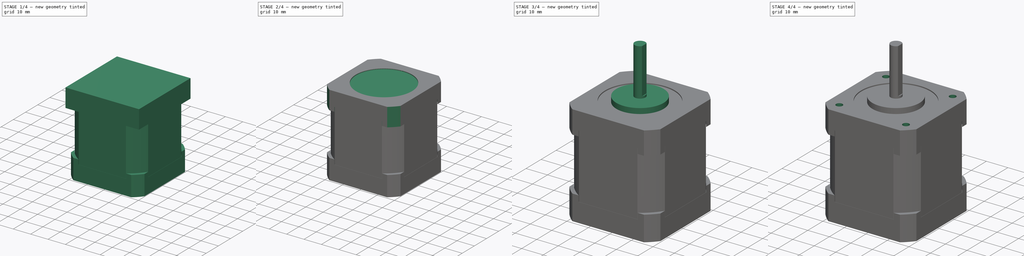
[diagram: build sequence overview — one tinted view per stage of 4, left to right]
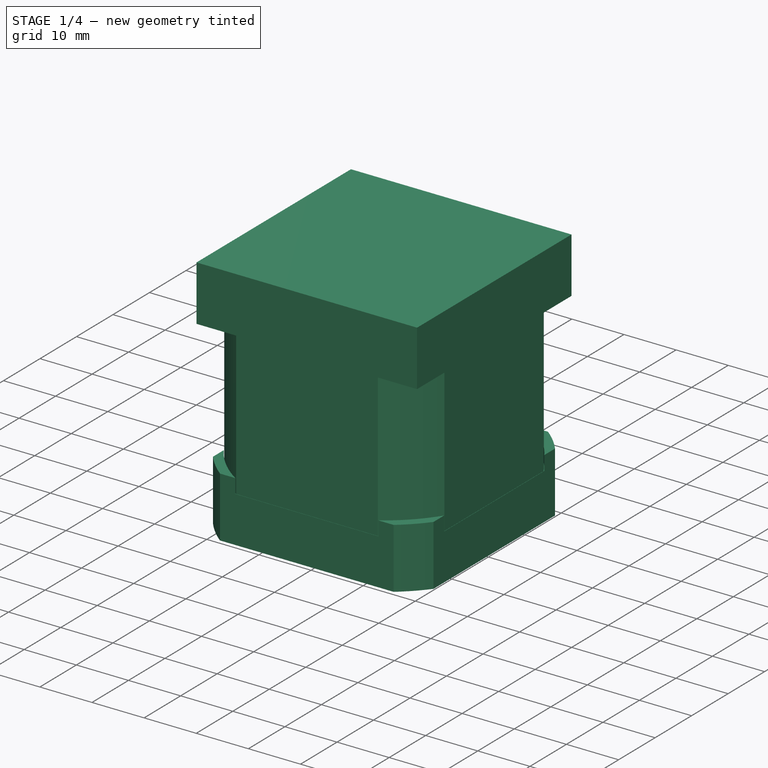
[diagram: stage 1 of 4 — iso view after this stage's code; geometry added in this stage tinted green]
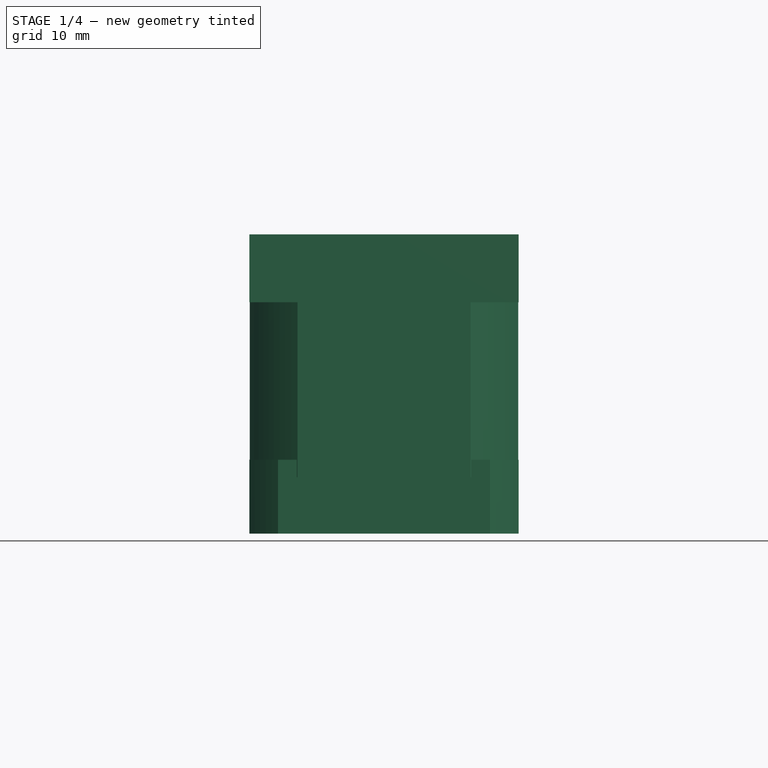
[diagram: stage 1 of 4 — front view after this stage's code; geometry added in this stage tinted green]
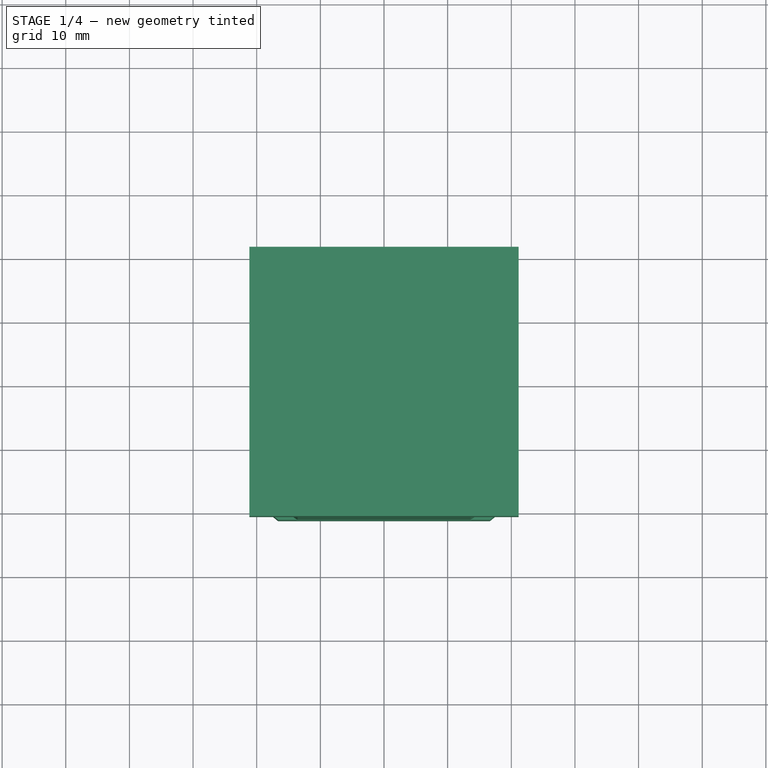
[diagram: stage 1 of 4 — top view after this stage's code; geometry added in this stage tinted green]
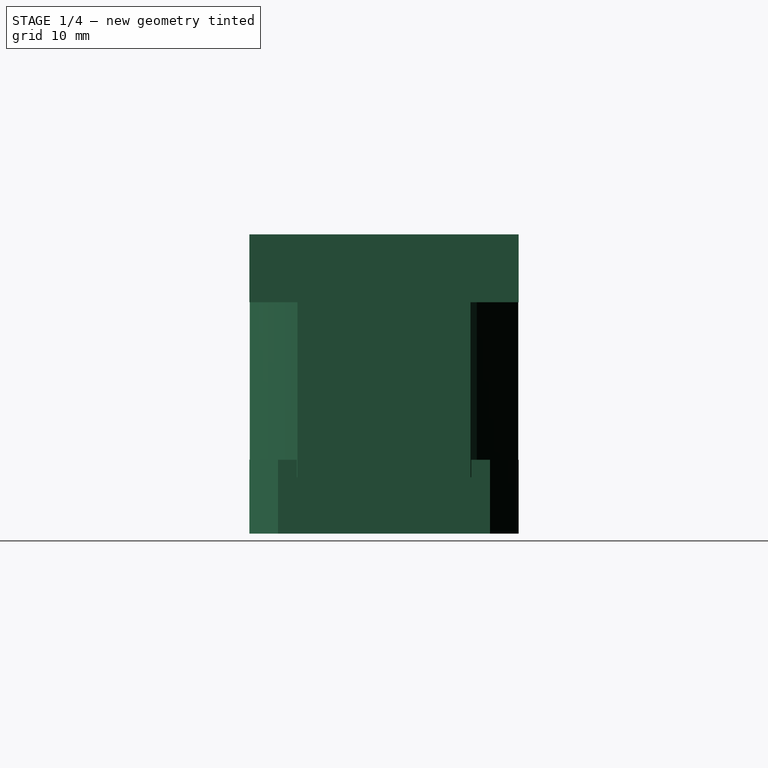
[diagram: stage 1 of 4 — right view after this stage's code; geometry added in this stage tinted green]
FCSTD DOCUMENT  (FreeCAD 0.16R6706 (Git))
Label: NEMA-17_Stepper_Motor_47mm
License: CreativeCommons Attribution-ShareAlike
LicenseURL: http://creativecommons.org/licenses/by-sa/4.0/
objects: Sketcher::SketchObject×12, PartDesign::Pocket×7, PartDesign::Pad×5, PartDesign::PolarPattern×1, Part::FeaturePython×1
note: 38 computed .brp shape members not serialized (recipe doc carries the construction recipe); baked Part::Feature solids carry a one-line shape summary decoded from their .brp

FEATURE [Sketcher::SketchObject] Sketch
  sketch-geometry (8):
    g0: LineSegment StartX=-16.65 StartY=-21.15 StartZ=0 EndX=16.65 EndY=-21.15 EndZ=0
    g1: LineSegment StartX=21.15 StartY=-16.65 StartZ=0 EndX=21.15 EndY=16.65 EndZ=0
    g2: LineSegment StartX=16.65 StartY=21.15 StartZ=0 EndX=-16.65 EndY=21.15 EndZ=0
    g3: LineSegment StartX=-21.15 StartY=16.65 StartZ=0 EndX=-21.15 EndY=-16.65 EndZ=0
    g4: ArcOfCircle CenterX=0 CenterY=0 CenterZ=0 NormalX=0 NormalY=0 NormalZ=1 Radius=26.9174 StartAngle=2.2377 EndAngle=2.47468
    g5: ArcOfCircle CenterX=0 CenterY=0 CenterZ=0 NormalX=0 NormalY=0 NormalZ=1 Radius=26.9174 StartAngle=3.8085 EndAngle=4.04548
    g6: ArcOfCircle CenterX=0 CenterY=0 CenterZ=0 NormalX=0 NormalY=0 NormalZ=1 Radius=26.9174 StartAngle=5.3793 EndAngle=5.61628
    g7: ArcOfCircle CenterX=0 CenterY=0 CenterZ=0 NormalX=0 NormalY=0 NormalZ=1 Radius=26.9174 StartAngle=0.666908 EndAngle=0.903888
  constraints (29):
    c: Horizontal(g0)
    c: Horizontal(g2)
    c: Vertical(g1)
    c: Vertical(g3)
    c: PointOnObject(g0,g4)
    c: PointOnObject(g0,g4)
    c: PointOnObject(g1,g4)
    c: PointOnObject(g1,g4)
    c: Coincident(g4,g2)
    c: Coincident(g7,g2)
    c: Equal(g4,g5)
    c: Coincident(g4,g3)
    c: Coincident(g5,g3)
    c: Coincident(g4,g5)
    c: Equal(g5,g6)
    c: PointOnObject(g5,g0)
    c: PointOnObject(g6,g0)
    c: Coincident(g5,g6)
    c: Equal(g6,g7)
    c: PointOnObject(g6,g1)
    c: PointOnObject(g7,g1)
    c: Coincident(g6,g7)
    c: Equal(g3,g2)
    c: Equal(g2,g1)
    c: Equal(g1,g0)
    c: DistanceX(g3,g1) = 42.3
    c: DistanceX(g2) = -33.3
    c: DistanceY(g2) = 21.15
    c: DistanceX(g1) = 21.15
FEATURE [PartDesign::Pad] Pad
  Length = 11.6
  Length2 = 100
  Sketch = -> Sketch
  Type = 0
FEATURE [Sketcher::SketchObject] Sketch001
  Placement = pos=(0,0,11.6) rot=(0,0,1;0rad)
  Support = -> Pad [Face10]
  sketch-geometry (1):
    g0: Circle CenterX=0 CenterY=0 CenterZ=0 NormalX=0 NormalY=0 NormalZ=1 Radius=25.2
  constraints (2):
    c: Coincident(g0,g-1)
    c: Radius(g0) = 25.2
FEATURE [PartDesign::Pocket] Pocket
  Length = 2.75
  Sketch = -> Sketch001
  Type = 0
FEATURE [Sketcher::SketchObject] Sketch002
  Placement = pos=(0,0,8.85) rot=(0,0,1;0rad)
  Support = -> Pocket [Face10]
  sketch-geometry (8):
    g0: ArcOfCircle CenterX=0 CenterY=0 CenterZ=0 NormalX=0 NormalY=0 NormalZ=1 Radius=25.1 StartAngle=3.71393 EndAngle=4.14005
    g1: LineSegment StartX=-13.5941 StartY=21.1 StartZ=0 EndX=13.5941 EndY=21.1 EndZ=0
    g2: LineSegment StartX=21.1 StartY=13.5941 StartZ=0 EndX=21.1 EndY=-13.5941 EndZ=0
    g3: LineSegment StartX=13.5941 StartY=-21.1 StartZ=0 EndX=-13.5941 EndY=-21.1 EndZ=0
    g4: LineSegment StartX=-21.1 StartY=-13.5941 StartZ=0 EndX=-21.1 EndY=13.5941 EndZ=0
    g5: ArcOfCircle CenterX=0 CenterY=0 CenterZ=0 NormalX=0 NormalY=0 NormalZ=1 Radius=25.1 StartAngle=5.28473 EndAngle=5.71085
    g6: ArcOfCircle CenterX=0 CenterY=0 CenterZ=0 NormalX=0 NormalY=0 NormalZ=1 Radius=25.1 StartAngle=0.572337 EndAngle=0.998459
    g7: ArcOfCircle CenterX=0 CenterY=0 CenterZ=0 NormalX=0 NormalY=0 NormalZ=1 Radius=25.1 StartAngle=2.14313 EndAngle=2.56926
  constraints (25):
    c: Coincident(g0,g-1)
    c: Horizontal(g1)
    c: Horizontal(g3)
    c: Vertical(g2)
    c: Vertical(g4)
    c: Equal(g3,g4)
    c: Equal(g0,g5)
    c: Coincident(g0,g5)
    c: Equal(g5,g6)
    c: Coincident(g5,g6)
    c: Equal(g6,g7)
    c: Coincident(g6,g7)
    c: Coincident(g1,g7)
    c: Coincident(g4,g7)
    c: Coincident(g3,g0)
    c: Coincident(g4,g0)
    c: Coincident(g1,g6)
    c: Coincident(g2,g6)
    c: Coincident(g2,g5)
    c: Coincident(g3,g5)
    c: Equal(g3,g4)
    c: Equal(g4,g1)
    c: Equal(g1,g2)
    c: Radius(g6) = 25.1
    c: DistanceY(g1,g0) = -42.2
FEATURE [PartDesign::Pad] Pad001
  Length = 27.5
  Length2 = 100
  Sketch = -> Sketch002
  Type = 0
FEATURE [Sketcher::SketchObject] Sketch003
  Placement = pos=(0,0,36.35) rot=(0,0,1;0rad)
  Support = -> Pad001 [Face27]
  sketch-geometry (4):
    g0: LineSegment StartX=-21.15 StartY=21.15 StartZ=0 EndX=21.15 EndY=21.15 EndZ=0
    g1: LineSegment StartX=21.15 StartY=21.15 StartZ=0 EndX=21.15 EndY=-21.15 EndZ=0
    g2: LineSegment StartX=21.15 StartY=-21.15 StartZ=0 EndX=-21.15 EndY=-21.15 EndZ=0
    g3: LineSegment StartX=-21.15 StartY=-21.15 StartZ=0 EndX=-21.15 EndY=21.15 EndZ=0
  constraints (11):
    c: Coincident(g0,g1)
    c: Coincident(g1,g2)
    c: Coincident(g2,g3)
    c: Coincident(g3,g0)
    c: Horizontal(g0)
    c: Horizontal(g2)
    c: Vertical(g1)
    c: Vertical(g3)
    c: Symmetric(g2,g0,g-1)
    c: Equal(g0,g3)
    c: DistanceX(g0) = 42.3
FEATURE [PartDesign::Pad] Pad002
  Length = 10.65
  Length2 = 100
  Sketch = -> Sketch003
  Type = 0
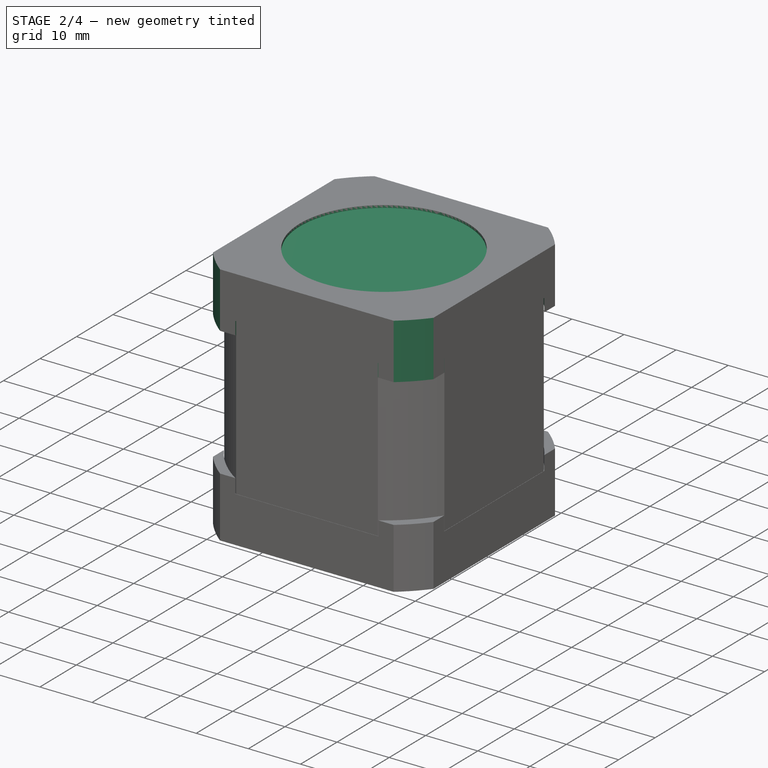
[diagram: stage 2 of 4 — iso view after this stage's code; geometry added in this stage tinted green]
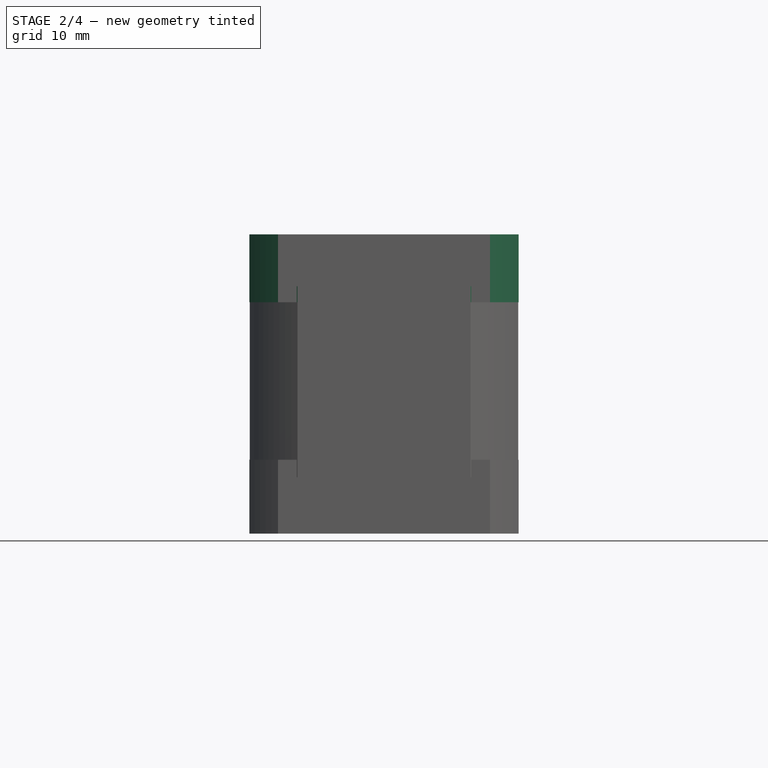
[diagram: stage 2 of 4 — front view after this stage's code; geometry added in this stage tinted green]
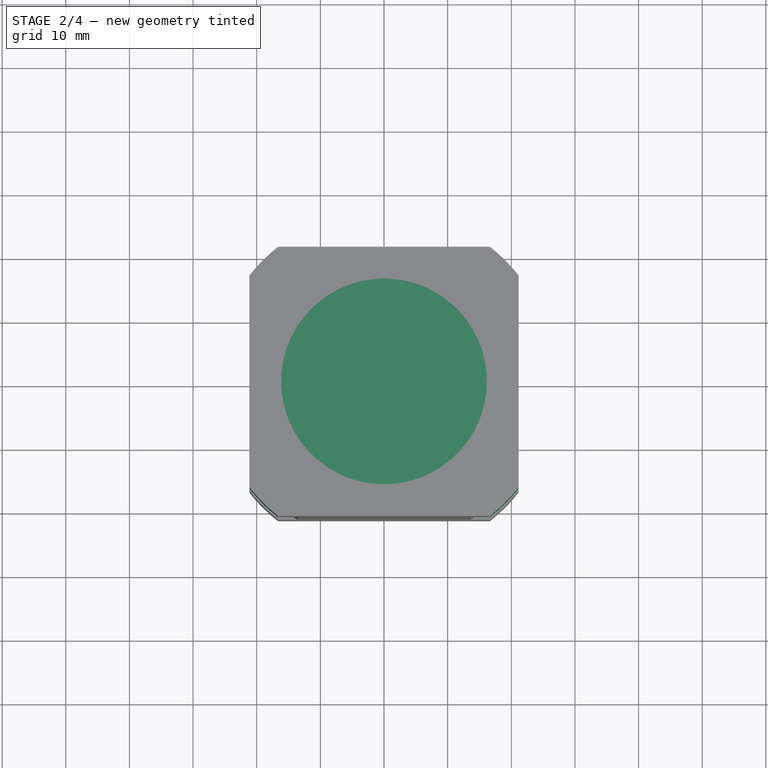
[diagram: stage 2 of 4 — top view after this stage's code; geometry added in this stage tinted green]
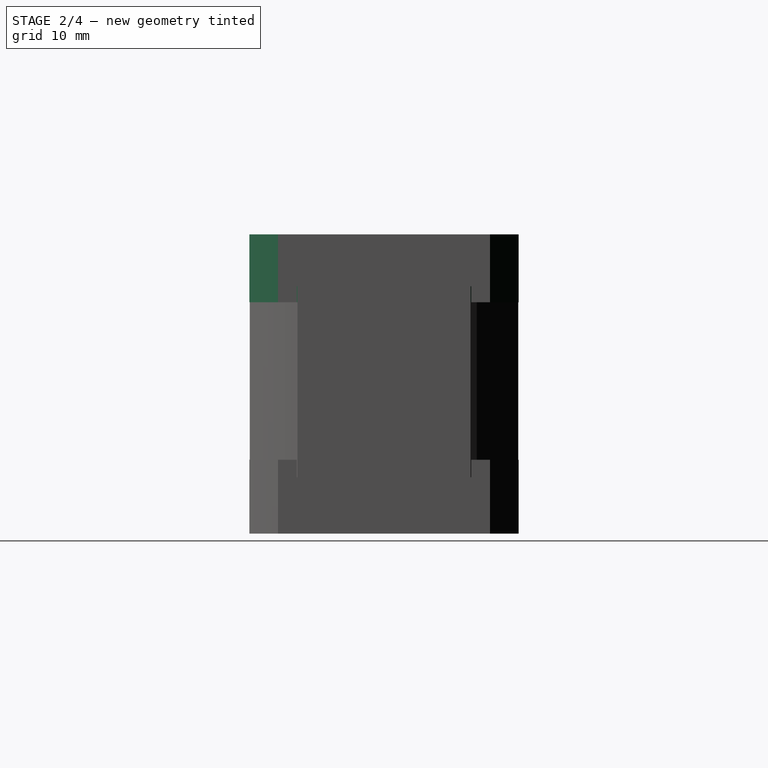
[diagram: stage 2 of 4 — right view after this stage's code; geometry added in this stage tinted green]
FEATURE [Sketcher::SketchObject] Sketch004
  Placement = pos=(0,0,47) rot=(0,0,1;0rad)
  Support = -> Pad002 [Face32]
  sketch-geometry (5):
    g0: Circle CenterX=0 CenterY=0 CenterZ=0 NormalX=0 NormalY=0 NormalZ=1 Radius=26.9174
    g1: LineSegment StartX=-30 StartY=30 StartZ=0 EndX=30 EndY=30 EndZ=0
    g2: LineSegment StartX=30 StartY=30 StartZ=0 EndX=30 EndY=-30 EndZ=0
    g3: LineSegment StartX=30 StartY=-30 StartZ=0 EndX=-30 EndY=-30 EndZ=0
    g4: LineSegment StartX=-30 StartY=-30 StartZ=0 EndX=-30 EndY=30 EndZ=0
  constraints (13):
    c: Coincident(g0,g-1)
    c: Coincident(g1,g2)
    c: Coincident(g2,g3)
    c: Coincident(g3,g4)
    c: Coincident(g4,g1)
    c: Horizontal(g1)
    c: Horizontal(g3)
    c: Vertical(g2)
    c: Vertical(g4)
    c: Symmetric(g2,g1,g-1)
    c: Equal(g4,g1)
    c: DistanceX(g1) = 60
    c: Radius(g0) = 26.9174
FEATURE [PartDesign::Pocket] Pocket001
  Length = 12
  Sketch = -> Sketch004
  Type = 0
FEATURE [Sketcher::SketchObject] Sketch005
  Placement = pos=(0,0,36.35) rot=(1,0,0;3.14159rad)
  Support = -> Pocket001 [Face27]
  sketch-geometry (9):
    g0: Circle CenterX=0 CenterY=0 CenterZ=0 NormalX=0 NormalY=0 NormalZ=1 Radius=25.2
    g1: ArcOfCircle CenterX=0 CenterY=0 CenterZ=0 NormalX=0 NormalY=0 NormalZ=1 Radius=25.1 StartAngle=3.71393 EndAngle=4.14005
    g2: LineSegment StartX=-13.5941 StartY=21.1 StartZ=0 EndX=13.5941 EndY=21.1 EndZ=0
    g3: LineSegment StartX=21.1 StartY=13.5941 StartZ=0 EndX=21.1 EndY=-13.5941 EndZ=0
    g4: LineSegment StartX=13.5941 StartY=-21.1 StartZ=0 EndX=-13.5941 EndY=-21.1 EndZ=0
    g5: LineSegment StartX=-21.1 StartY=-13.5941 StartZ=0 EndX=-21.1 EndY=13.5941 EndZ=0
    g6: ArcOfCircle CenterX=0 CenterY=0 CenterZ=0 NormalX=0 NormalY=0 NormalZ=1 Radius=25.1 StartAngle=2.14313 EndAngle=2.56926
    g7: ArcOfCircle CenterX=0 CenterY=0 CenterZ=0 NormalX=0 NormalY=0 NormalZ=1 Radius=25.1 StartAngle=0.572337 EndAngle=0.998459
    g8: ArcOfCircle CenterX=0 CenterY=0 CenterZ=0 NormalX=0 NormalY=0 NormalZ=1 Radius=25.1 StartAngle=5.28473 EndAngle=5.71085
  constraints (26):
    c: Coincident(g0,g-1)
    c: Radius(g0) = 25.2
    c: Coincident(g1,g-1)
    c: Radius(g1) = 25.1
    c: Horizontal(g2)
    c: Horizontal(g4)
    c: Vertical(g3)
    c: Vertical(g5)
    c: Equal(g1,g6)
    c: Coincident(g1,g6)
    c: Equal(g1,g7)
    c: Coincident(g1,g7)
    c: Equal(g1,g8)
    c: Coincident(g1,g8)
    c: Coincident(g5,g6)
    c: Coincident(g2,g6)
    c: Coincident(g2,g7)
    c: Coincident(g3,g7)
    c: Coincident(g3,g8)
    c: Coincident(g4,g8)
    c: Coincident(g4,g1)
    c: Coincident(g5,g1)
    c: Equal(g5,g4)
    c: Equal(g2,g3)
    c: Equal(g3,g5)
    c: DistanceY(g2,g1) = -42.2
FEATURE [PartDesign::Pocket] Pocket002
  Length = 2.5
  Sketch = -> Sketch005
  Type = 0
FEATURE [Sketcher::SketchObject] Sketch006
  Placement = pos=(0,0,47) rot=(0,0,1;0rad)
  Support = -> Pocket002 [Face46]
  sketch-geometry (1):
    g0: Circle CenterX=0 CenterY=0 CenterZ=0 NormalX=0 NormalY=0 NormalZ=1 Radius=16.15
  constraints (2):
    c: Coincident(g0,g-1)
    c: Radius(g0) = 16.15
FEATURE [PartDesign::Pocket] Pocket003
  Length = 0.5
  Sketch = -> Sketch006
  Type = 0
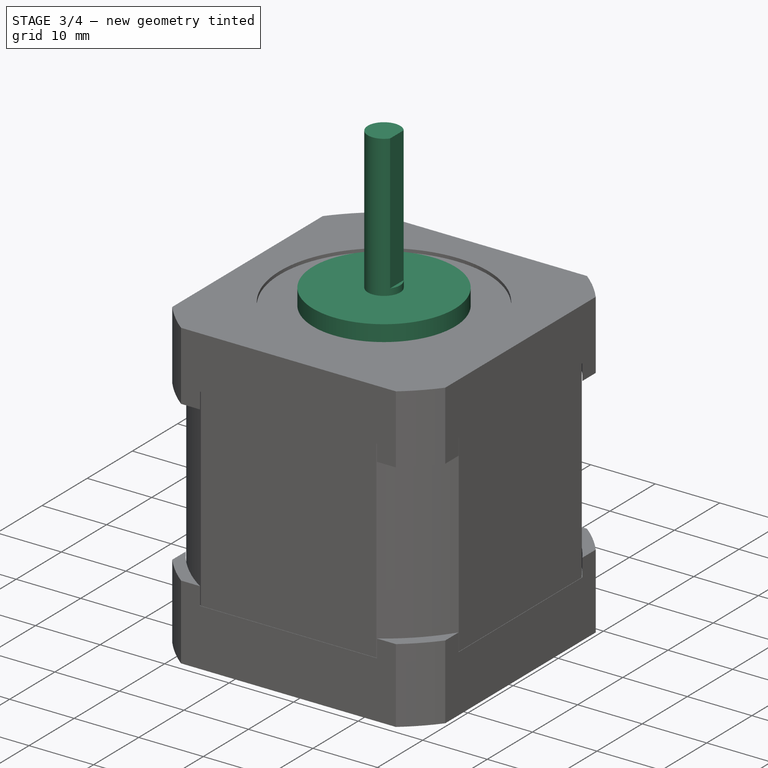
[diagram: stage 3 of 4 — iso view after this stage's code; geometry added in this stage tinted green]
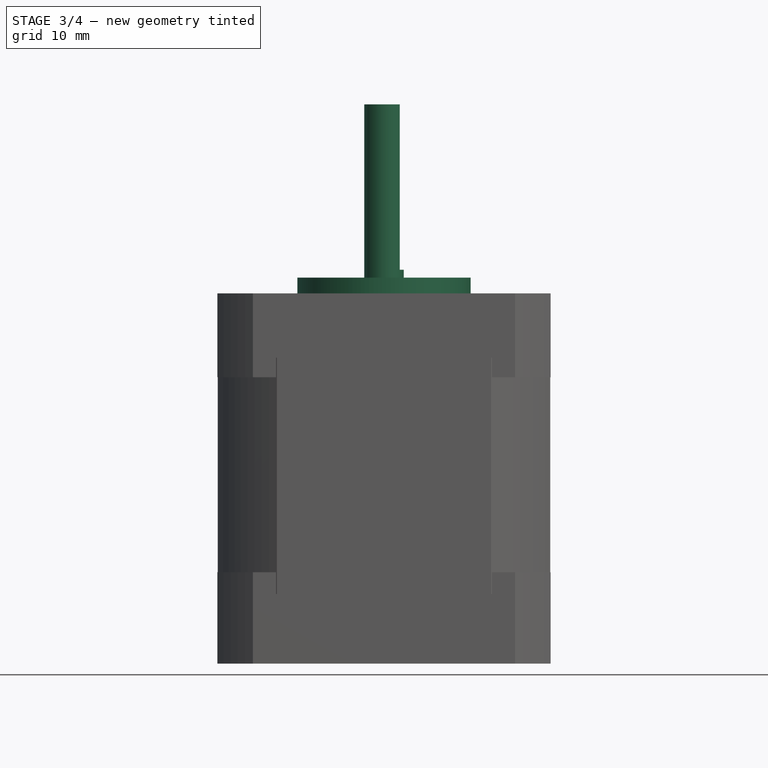
[diagram: stage 3 of 4 — front view after this stage's code; geometry added in this stage tinted green]
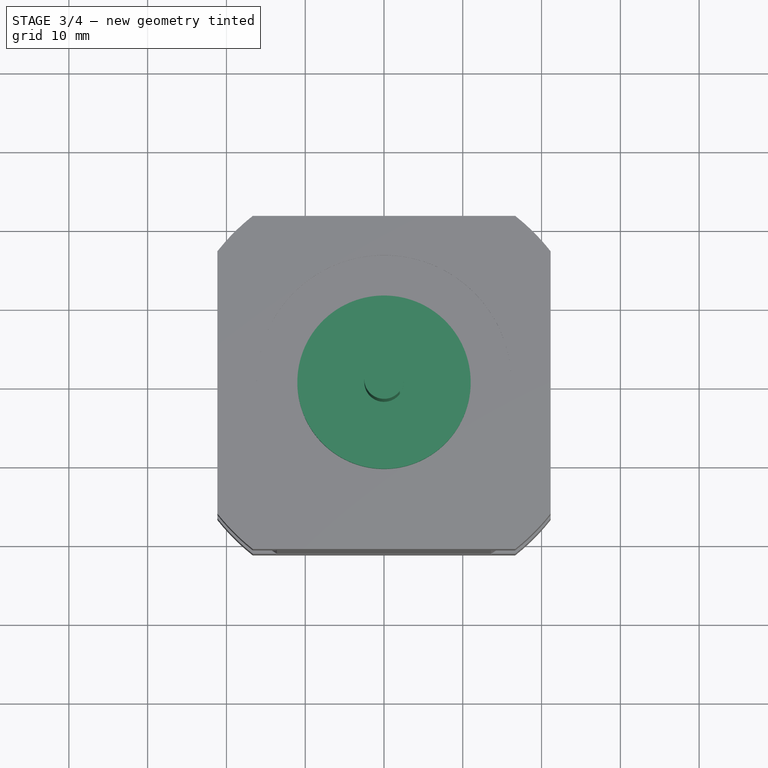
[diagram: stage 3 of 4 — top view after this stage's code; geometry added in this stage tinted green]
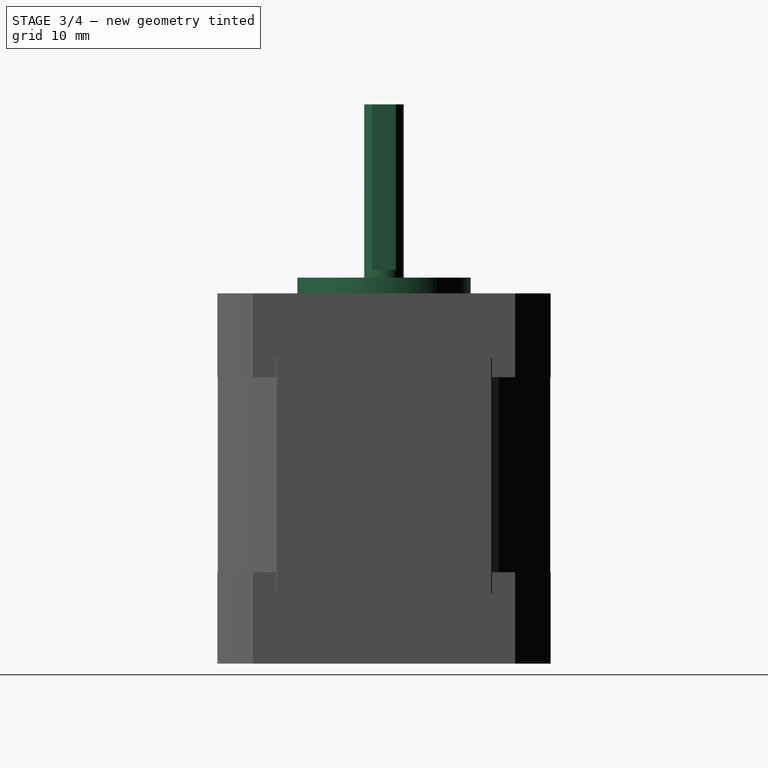
[diagram: stage 3 of 4 — right view after this stage's code; geometry added in this stage tinted green]
FEATURE [Sketcher::SketchObject] Sketch007
  Placement = pos=(0,0,46.5) rot=(0,0,1;0rad)
  Support = -> Pocket003 [Face54]
  sketch-geometry (1):
    g0: Circle CenterX=0 CenterY=0 CenterZ=0 NormalX=0 NormalY=0 NormalZ=1 Radius=11
  constraints (2):
    c: Coincident(g0,g-1)
    c: Radius(g0) = 11
FEATURE [PartDesign::Pad] Pad003
  Length = 2.5
  Length2 = 100
  Sketch = -> Sketch007
  Type = 0
FEATURE [Sketcher::SketchObject] Sketch008
  Placement = pos=(0,0,49) rot=(0,0,1;0rad)
  Support = -> Pad003 [Face56]
  sketch-geometry (1):
    g0: Circle CenterX=0 CenterY=0 CenterZ=0 NormalX=0 NormalY=0 NormalZ=1 Radius=2.5
  constraints (2):
    c: Coincident(g0,g-1)
    c: Radius(g0) = 2.5
FEATURE [PartDesign::Pad] Pad004
  Length = 22
  Length2 = 100
  Sketch = -> Sketch008
  Type = 0
FEATURE [Sketcher::SketchObject] Sketch009
  Placement = pos=(0,0,71) rot=(0,0,1;0rad)
  Support = -> Pad004 [Face58]
  sketch-geometry (4):
    g0: LineSegment StartX=2 StartY=2.5 StartZ=0 EndX=4 EndY=2.5 EndZ=0
    g1: LineSegment StartX=4 StartY=2.5 StartZ=0 EndX=4 EndY=-2.5 EndZ=0
    g2: LineSegment StartX=4 StartY=-2.5 StartZ=0 EndX=2 EndY=-2.5 EndZ=0
    g3: LineSegment StartX=2 StartY=-2.5 StartZ=0 EndX=2 EndY=2.5 EndZ=0
  constraints (12):
    c: Coincident(g0,g1)
    c: Coincident(g1,g2)
    c: Coincident(g2,g3)
    c: Coincident(g3,g0)
    c: Horizontal(g0)
    c: Horizontal(g2)
    c: Vertical(g1)
    c: Vertical(g3)
    c: DistanceX(g0) = 2
    c: Symmetric(g0,g2,g-1)
    c: DistanceY(g1) = -5
    c: DistanceX(g2) = -2
FEATURE [PartDesign::Pocket] Pocket004
  Length = 21
  Sketch = -> Sketch009
  Type = 0
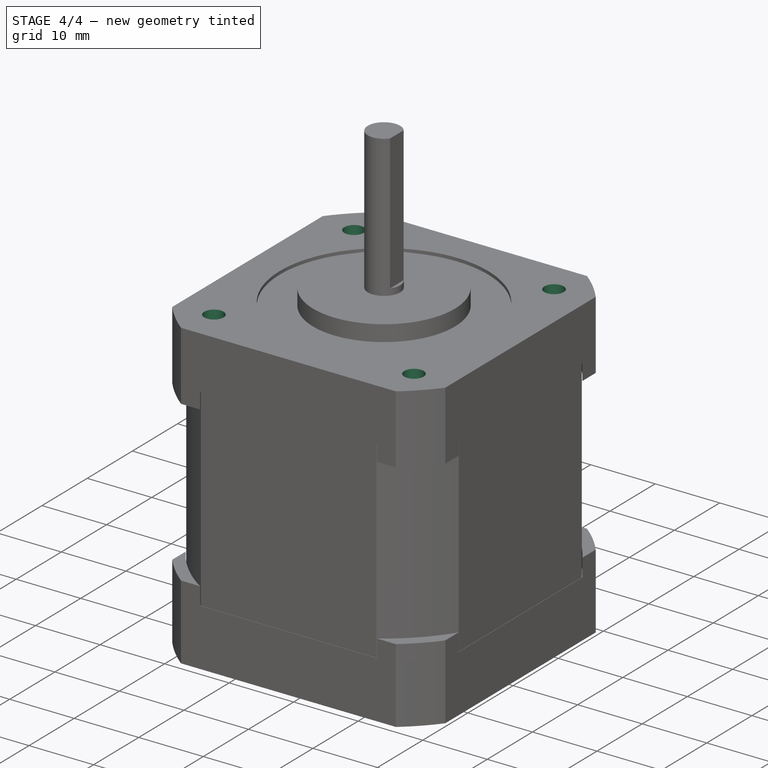
[diagram: stage 4 of 4 — iso view after this stage's code; geometry added in this stage tinted green]
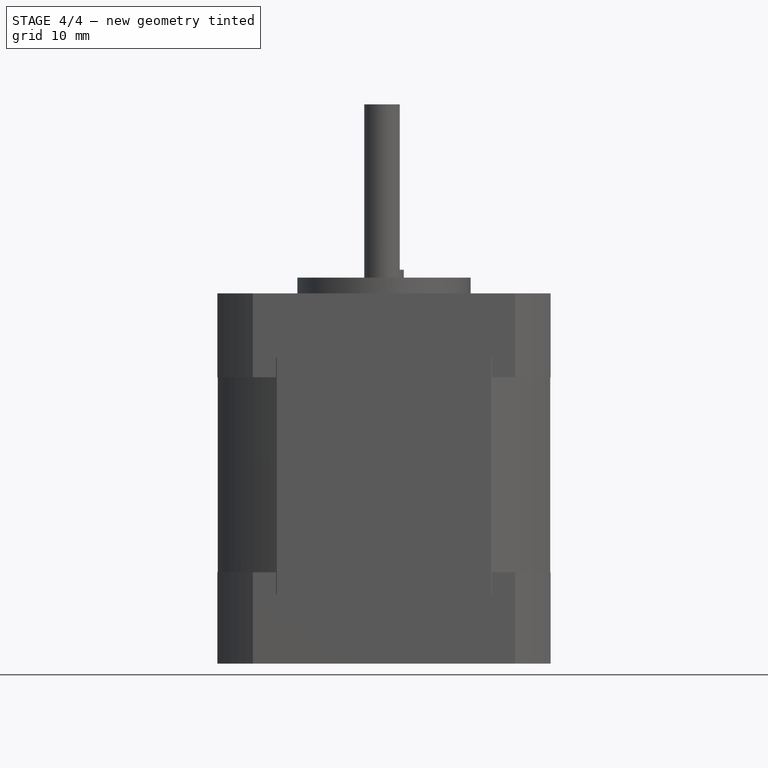
[diagram: stage 4 of 4 — front view after this stage's code; geometry added in this stage tinted green]
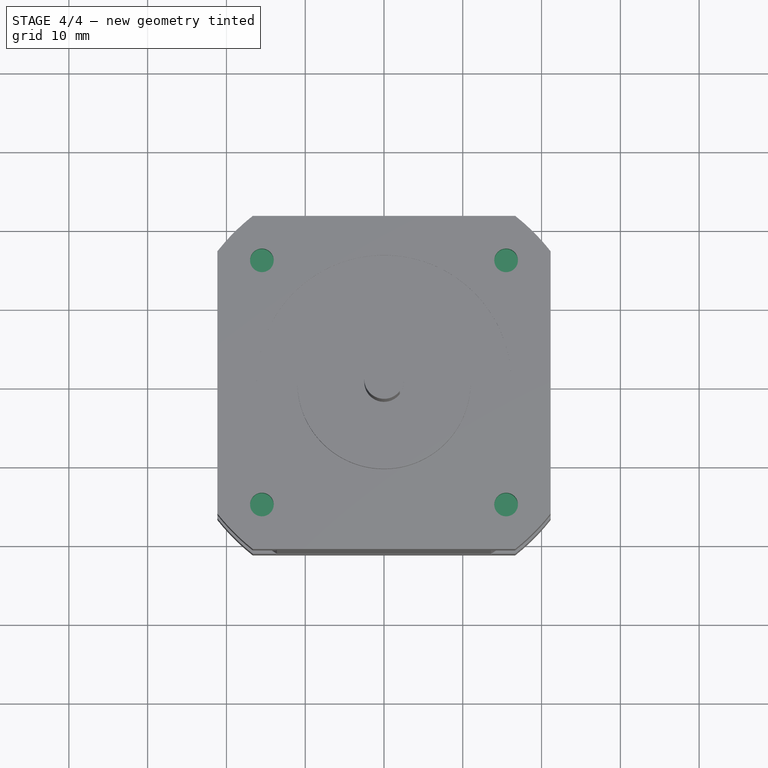
[diagram: stage 4 of 4 — top view after this stage's code; geometry added in this stage tinted green]
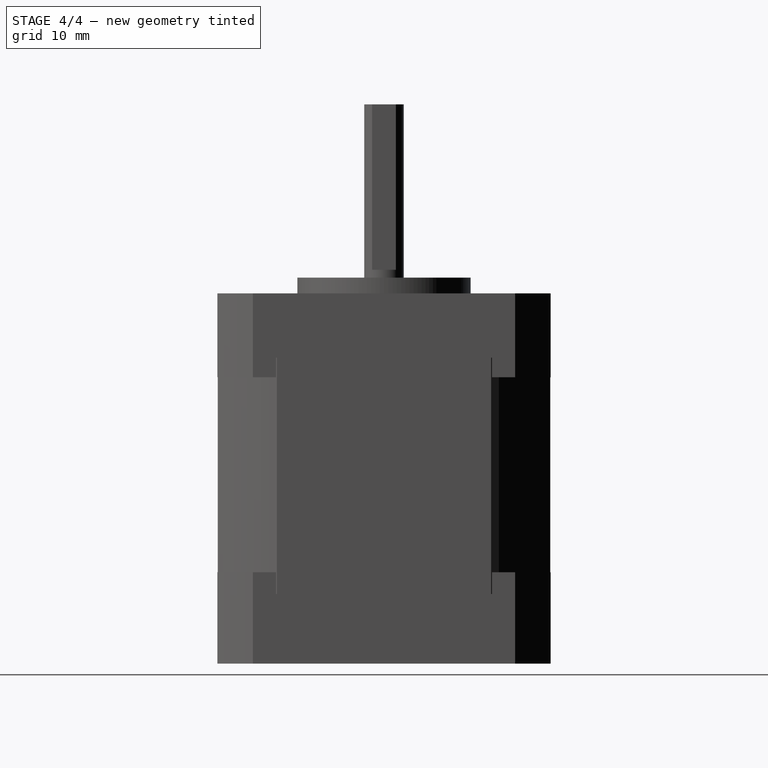
[diagram: stage 4 of 4 — right view after this stage's code; geometry added in this stage tinted green]
FEATURE [Sketcher::SketchObject] Sketch010
  Placement = pos=(0,0,47) rot=(0,0,1;0rad)
  Support = -> Pocket004 [Face46]
  sketch-geometry (1):
    g0: Circle CenterX=-15.5 CenterY=-15.5 CenterZ=0 NormalX=0 NormalY=0 NormalZ=1 Radius=1.5
  constraints (3):
    c: Radius(g0) = 1.5
    c: DistanceX(g0) = -15.5
    c: DistanceY(g0) = -15.5
FEATURE [PartDesign::Pocket] Pocket005
  Length = 4.5
  Sketch = -> Sketch010
  Type = 0
FEATURE [PartDesign::PolarPattern] PolarPattern
  Angle = 360
  Axis = -> Sketch010 [N_Axis]
  Occurrences = 4
  Originals = -> [Pocket005]
FEATURE [Sketcher::SketchObject] Sketch011
  Placement = pos=(0,0,0) rot=(1,0,0;3.14159rad)
  Support = -> PolarPattern [Face1]
  sketch-geometry (1):
    g0: Circle CenterX=0 CenterY=0 CenterZ=0 NormalX=0 NormalY=0 NormalZ=1 Radius=3.4
  constraints (2):
    c: Coincident(g0,g-1)
    c: Radius(g0) = 3.4
FEATURE [PartDesign::Pocket] Pocket006
  Length = 3
  Sketch = -> Sketch011
  Type = 0
FEATURE [Part::FeaturePython] refine  label="refine_Pocket006"  # WARN: FeaturePython — macro-defined, semantics opaque (R4)
  Base = -> Pocket006
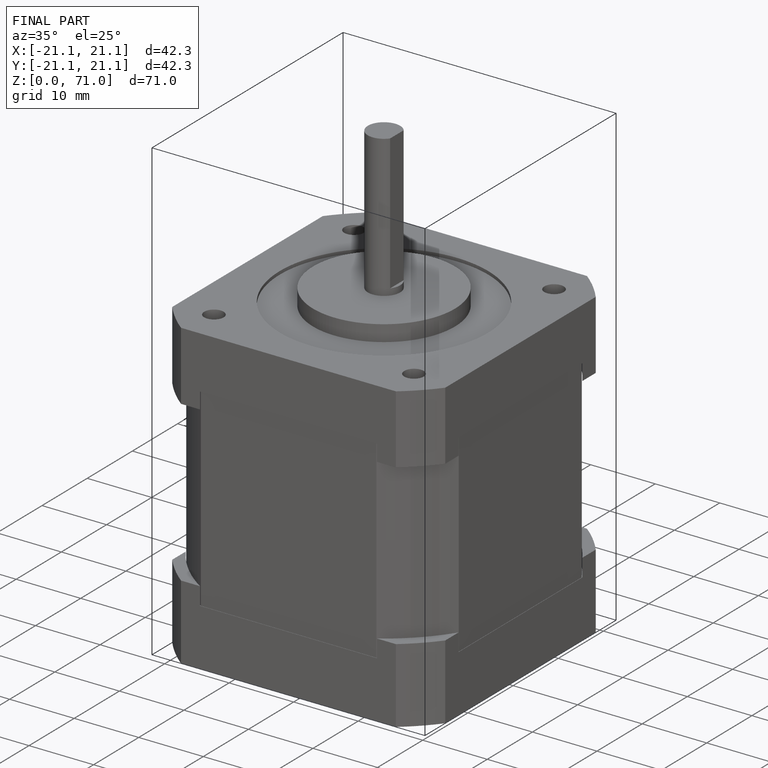
[diagram: finished part — iso view with bounding-box wireframe]
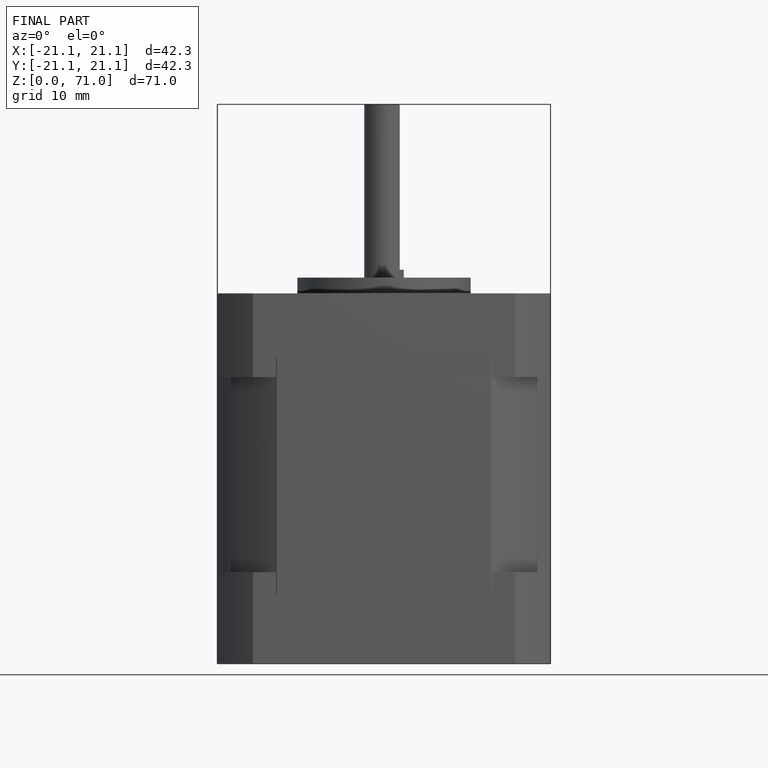
[diagram: finished part — front view with bounding-box wireframe]
